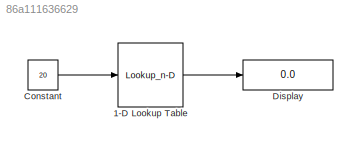
MODEL slx_86a111636629
KIND model
CONFIG AbsTol = auto
CONFIG EnableMultiTasking = off
CONFIG FixedStep = auto
CONFIG MaxStep = auto
CONFIG MinStep = auto
CONFIG RelTol = 1e-3
CONFIG SampleTimeConstraint = Unconstrained
CONFIG SolverName = VariableStepAuto
CONFIG StartTime = 0.0
CONFIG StopTime = 10.0
BLOCK [Lookup_n-D] 1-D Lookup Table
  BreakpointsForDimension1 = [0,20,40,60,80]
  InputPortMap = u0
  InternalRulePriority = Speed
  NumberOfTableDimensions = 1
  Ports = [1, 1]
  RndMeth = Simplest
  Table = [1,2.5,3.7,4.9,6.2]
BLOCK [Constant] Constant
  Value = 20
BLOCK [Display] Display
  Decimation = 1
  Ports = [1]
LINE 1-D Lookup Table:1 -> Display:1
LINE Constant:1 -> 1-D Lookup Table:1
